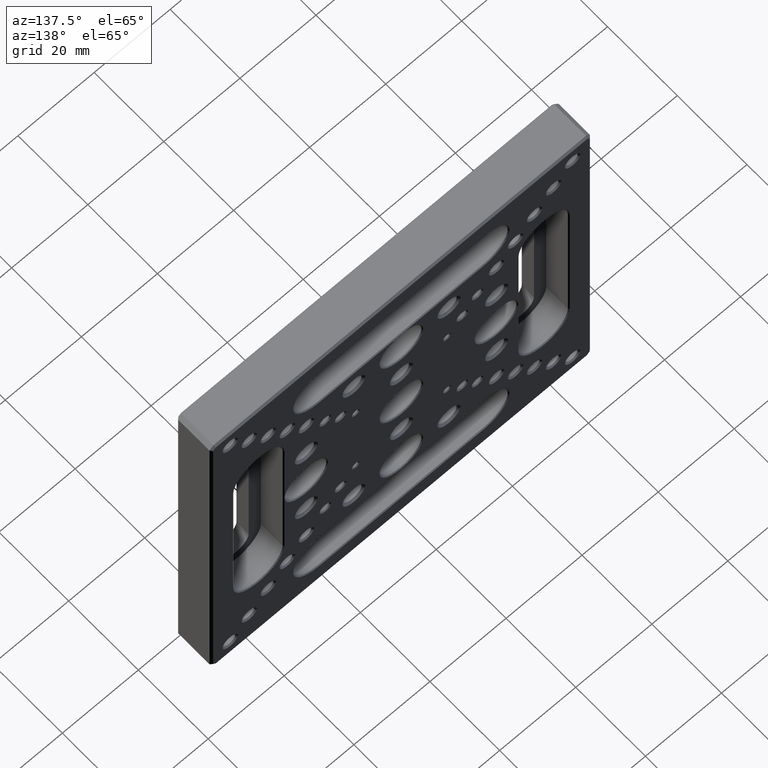
[diagram: clean part render]
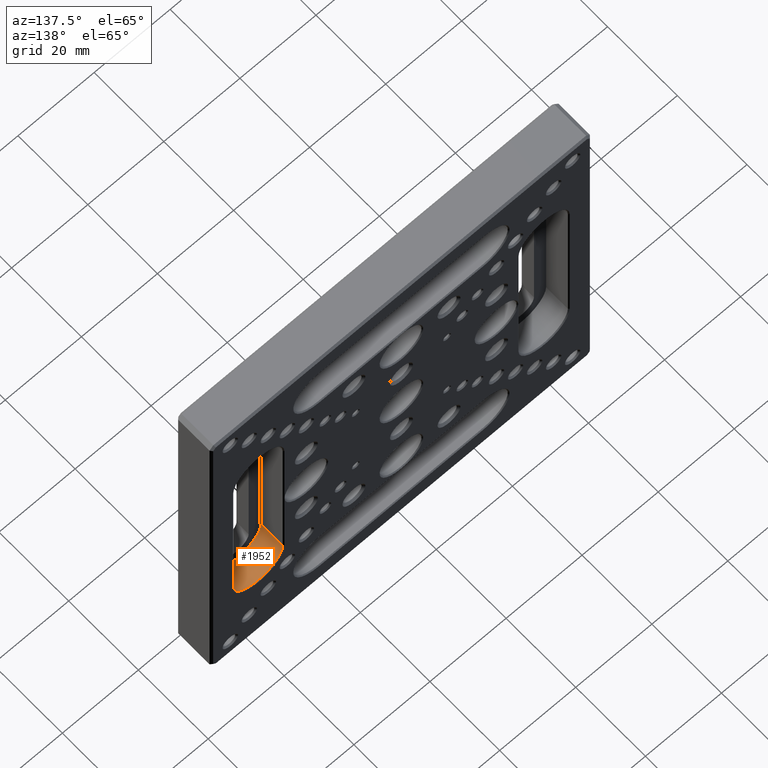
[diagram: same view with one face highlighted and labeled with its STEP entity id]
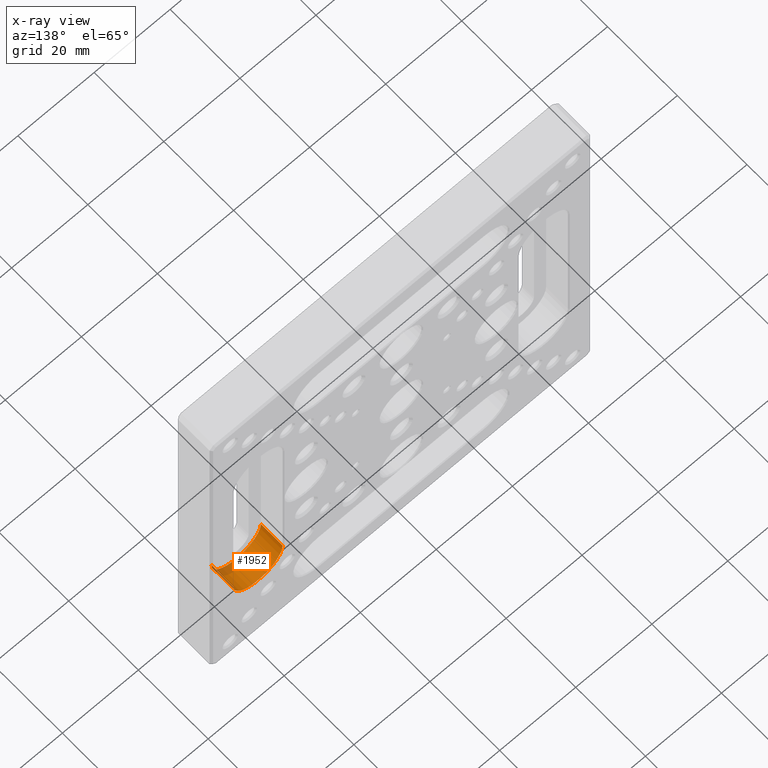
[diagram: x-ray of the same camera — body ghosted, the highlighted face saturated]
A machine part, auxiliary view. The second image highlights one B-rep face of the part: STEP entity #1952.
The next image is the same camera in x-ray: the body ghosted, the highlighted face saturated — about 7% of this face is hidden behind the body in this view.
In plain terms, the highlighted cylindrical surface (edge-blend (fillet) strip) has radius 6.5 mm, axis along (-0, 1, -0).
Its self-contained STEP definition (entity closure, byte-faithful):
#41 = AXIS2_PLACEMENT_3D ( 'NONE', #104, #844, #3189 ) ;
#104 = CARTESIAN_POINT ( 'NONE',  ( 37.50000000000000711, 9.750000000000000000, -21.70000000000001350 ) ) ;
#128 = CIRCLE ( 'NONE', #41, 6.499999999999999112 ) ;
#384 = EDGE_CURVE ( 'NONE', #1704, #1552, #1635, .T. ) ;
#417 = DIRECTION ( 'NONE',  ( -0.000000000000000000, 1.000000000000000000, -0.000000000000000000 ) ) ;
#489 = CARTESIAN_POINT ( 'NONE',  ( 44.00000000000000711, 9.750000000000000000, -21.70000000000001350 ) ) ;
#497 = CARTESIAN_POINT ( 'NONE',  ( 44.00000000000000711, 3.499999999999999556, -21.70000000000001350 ) ) ;
#591 = DIRECTION ( 'NONE',  ( 0.000000000000000000, 1.000000000000000000, 0.000000000000000000 ) ) ;
#779 = AXIS2_PLACEMENT_3D ( 'NONE', #2722, #417, #4302 ) ;
#844 = DIRECTION ( 'NONE',  ( 0.000000000000000000, 1.000000000000000000, 0.000000000000000000 ) ) ;
#879 = ORIENTED_EDGE ( 'NONE', *, *, #384, .T. ) ;
#889 = ORIENTED_EDGE ( 'NONE', *, *, #4593, .F. ) ;
#1179 = CYLINDRICAL_SURFACE ( 'NONE', #779, 6.499999999999999112 ) ;
#1552 = VERTEX_POINT ( 'NONE', #489 ) ;
#1635 = LINE ( 'NONE', #497, #3442 ) ;
#1704 = VERTEX_POINT ( 'NONE', #4516 ) ;
#1789 = EDGE_LOOP ( 'NONE', ( #879, #4821, #889, #2509 ) ) ;
#1869 = EDGE_CURVE ( 'NONE', #1552, #4415, #128, .T. ) ;
#1915 = VECTOR ( 'NONE', #3921, 1000.000000000000000 ) ;
#1952 = ADVANCED_FACE ( 'NONE', ( #3248 ), #1179, .F. ) ;
#2129 = DIRECTION ( 'NONE',  ( 0.000000000000000000, 0.000000000000000000, 1.000000000000000000 ) ) ;
#2304 = LINE ( 'NONE', #5002, #1915 ) ;
#2319 = AXIS2_PLACEMENT_3D ( 'NONE', #4087, #591, #2129 ) ;
#2384 = VERTEX_POINT ( 'NONE', #2784 ) ;
#2509 = ORIENTED_EDGE ( 'NONE', *, *, #4970, .F. ) ;
#2722 = CARTESIAN_POINT ( 'NONE',  ( 37.50000000000000711, 3.499999999999999556, -21.70000000000001350 ) ) ;
#2784 = CARTESIAN_POINT ( 'NONE',  ( 31.00000000000000711, 3.499999999999999556, -21.70000000000001350 ) ) ;
#2953 = CARTESIAN_POINT ( 'NONE',  ( 31.00000000000000711, 9.750000000000000000, -21.70000000000001350 ) ) ;
#3126 = DIRECTION ( 'NONE',  ( -0.000000000000000000, 1.000000000000000000, -0.000000000000000000 ) ) ;
#3189 = DIRECTION ( 'NONE',  ( 0.000000000000000000, 0.000000000000000000, 1.000000000000000000 ) ) ;
#3248 = FACE_OUTER_BOUND ( 'NONE', #1789, .T. ) ;
#3442 = VECTOR ( 'NONE', #3126, 1000.000000000000000 ) ;
#3921 = DIRECTION ( 'NONE',  ( -0.000000000000000000, 1.000000000000000000, -0.000000000000000000 ) ) ;
#4087 = CARTESIAN_POINT ( 'NONE',  ( 37.50000000000000711, 3.499999999999999556, -21.70000000000001350 ) ) ;
#4293 = CIRCLE ( 'NONE', #2319, 6.499999999999999112 ) ;
#4302 = DIRECTION ( 'NONE',  ( 0.000000000000000000, 0.000000000000000000, 1.000000000000000000 ) ) ;
#4415 = VERTEX_POINT ( 'NONE', #2953 ) ;
#4516 = CARTESIAN_POINT ( 'NONE',  ( 44.00000000000000711, 3.499999999999999556, -21.70000000000001350 ) ) ;
#4593 = EDGE_CURVE ( 'NONE', #2384, #4415, #2304, .T. ) ;
#4821 = ORIENTED_EDGE ( 'NONE', *, *, #1869, .T. ) ;
#4970 = EDGE_CURVE ( 'NONE', #1704, #2384, #4293, .T. ) ;
#5002 = CARTESIAN_POINT ( 'NONE',  ( 31.00000000000000711, 3.499999999999999556, -21.70000000000001350 ) ) ;